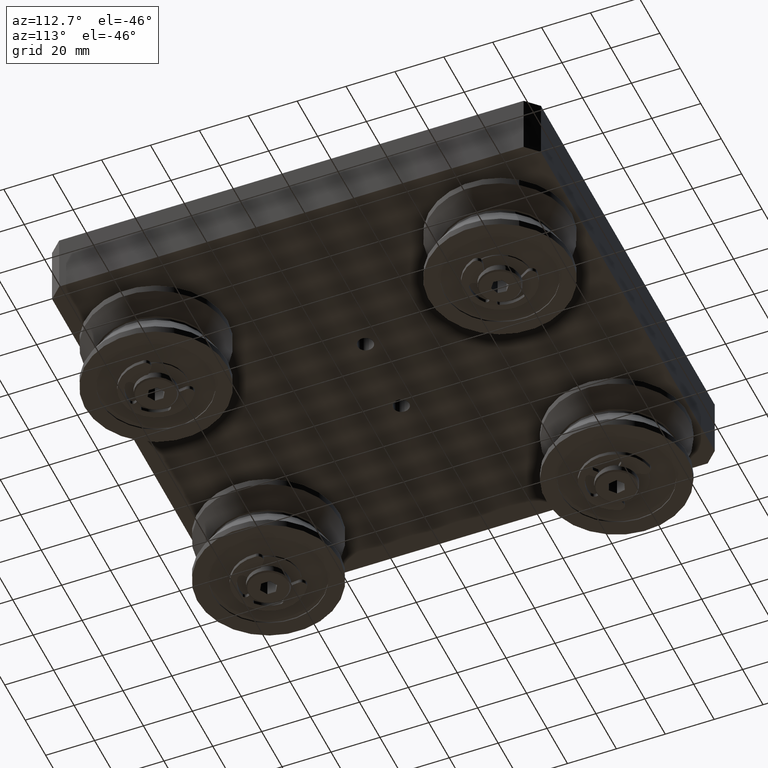
[diagram: clean part render]
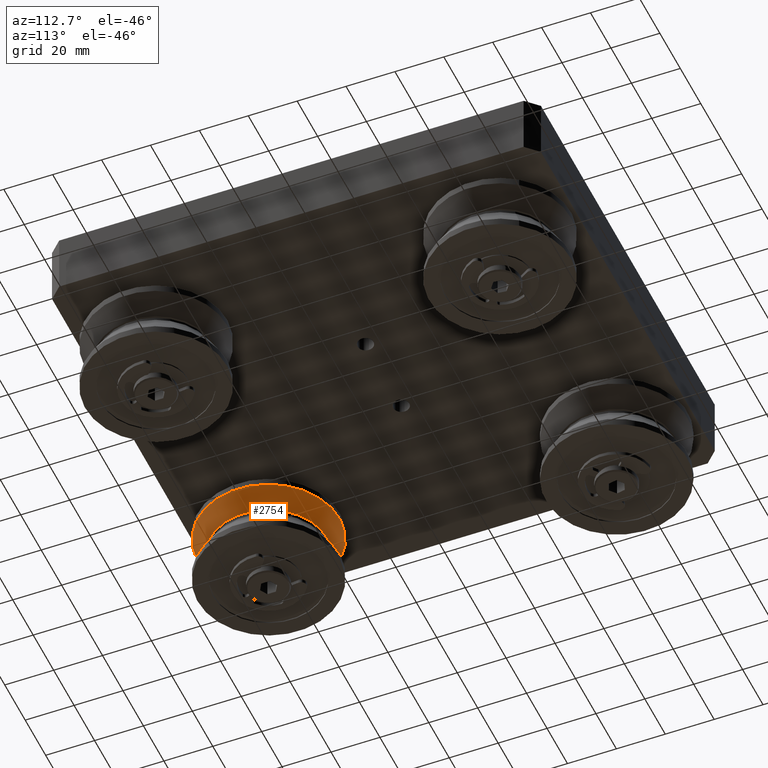
[diagram: same view with one face highlighted and labeled with its STEP entity id]
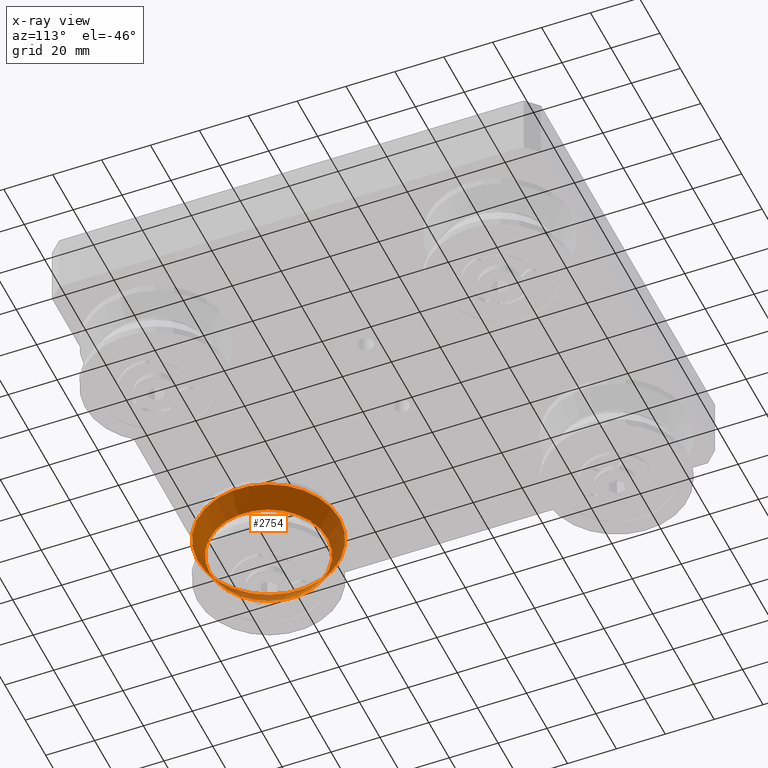
[diagram: x-ray of the same camera — body ghosted, the highlighted face saturated]
A machine part, auxiliary view. The second image highlights one B-rep face of the part: STEP entity #2754.
The next image is the same camera in x-ray: the body ghosted, the highlighted face saturated — about 6% of this face is hidden behind the body in this view.
In plain terms, the highlighted conical surface has half-angle 30 deg.
Its self-contained STEP definition (entity closure, byte-faithful):
#96=CONICAL_SURFACE('',#3232,26.5007386859688,0.5235987755983);
#324=CIRCLE('',#3231,24.0014773719376);
#325=CIRCLE('',#3233,29.);
#495=FACE_OUTER_BOUND('',#700,.T.);
#700=EDGE_LOOP('',(#2308,#2309,#2310,#2311));
#915=LINE('',#4798,#1130);
#1130=VECTOR('',#3968,26.5007386859688);
#1346=VERTEX_POINT('',#4793);
#1347=VERTEX_POINT('',#4796);
#1677=EDGE_CURVE('',#1346,#1346,#324,.T.);
#1678=EDGE_CURVE('',#1347,#1347,#325,.T.);
#1679=EDGE_CURVE('',#1347,#1346,#915,.T.);
#2308=ORIENTED_EDGE('',*,*,#1678,.F.);
#2309=ORIENTED_EDGE('',*,*,#1679,.T.);
#2310=ORIENTED_EDGE('',*,*,#1677,.T.);
#2311=ORIENTED_EDGE('',*,*,#1679,.F.);
#2754=ADVANCED_FACE('',(#495),#96,.T.);
#3231=AXIS2_PLACEMENT_3D('',#4794,#3962,#3963);
#3232=AXIS2_PLACEMENT_3D('',#4795,#3964,#3965);
#3233=AXIS2_PLACEMENT_3D('',#4797,#3966,#3967);
#3962=DIRECTION('center_axis',(1.,0.,0.));
#3963=DIRECTION('ref_axis',(0.,1.,0.));
#3964=DIRECTION('center_axis',(1.,0.,0.));
#3965=DIRECTION('ref_axis',(0.,1.,0.));
#3966=DIRECTION('center_axis',(1.,0.,0.));
#3967=DIRECTION('ref_axis',(0.,1.,0.));
#3968=DIRECTION('',(-0.866025403784438,0.500000000000001,6.12323399573677E-17));
#4793=CARTESIAN_POINT('',(0.949999999999999,-24.0014773719376,-2.9393332438351E-15));
#4794=CARTESIAN_POINT('Origin',(0.95,0.,0.));
#4795=CARTESIAN_POINT('Origin',(5.27884757729337,0.,0.));
#4796=CARTESIAN_POINT('',(9.60769515458674,-29.,-3.55147571752732E-15));
#4797=CARTESIAN_POINT('Origin',(9.60769515458674,0.,0.));
#4798=CARTESIAN_POINT('',(5.27884757729337,-26.5007386859688,-3.24540448068121E-15));